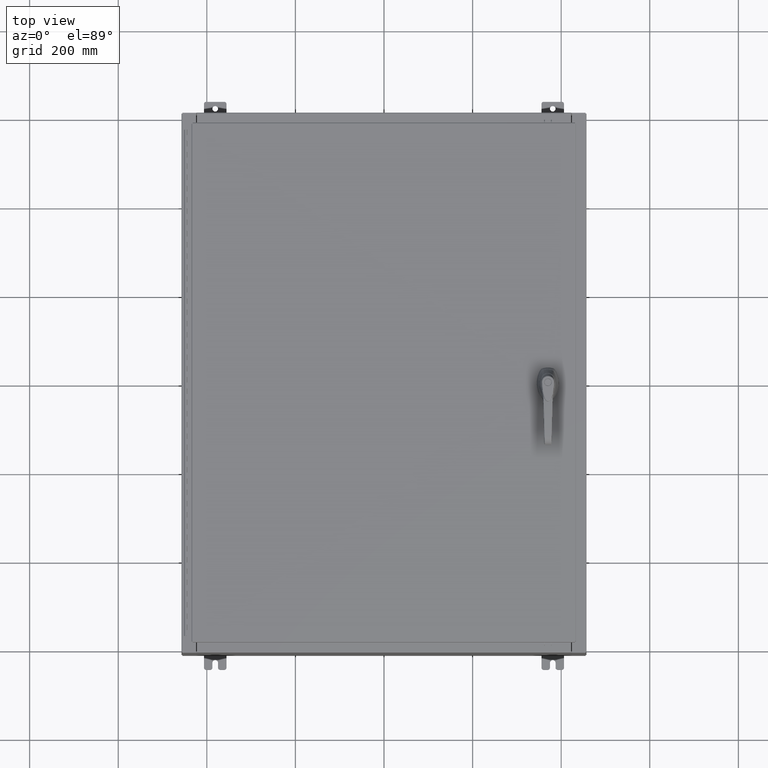
[diagram: clean part render]
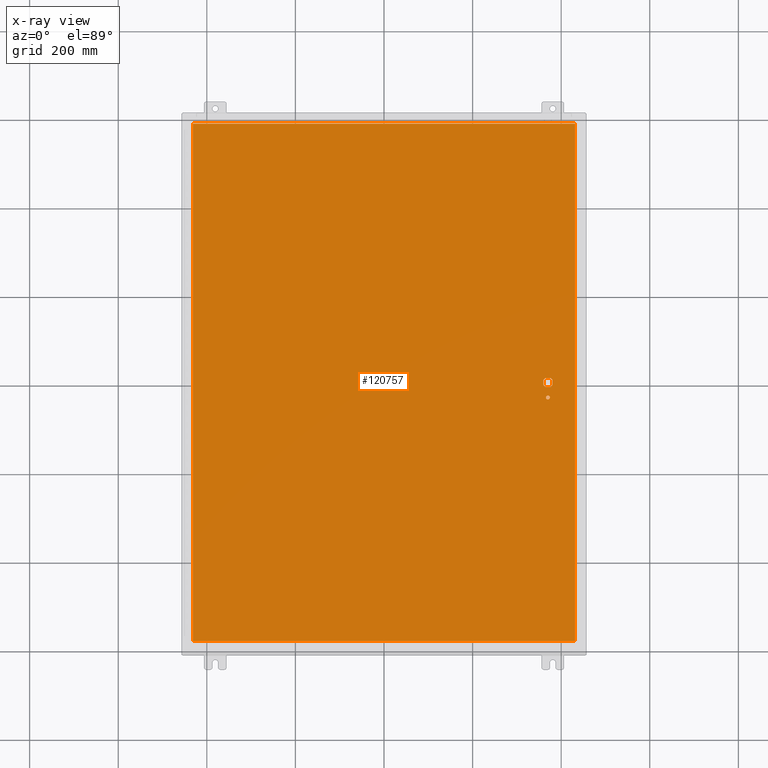
[diagram: x-ray — body ghosted, one internal face saturated and labeled with its STEP entity id]
A machine part, top view, then the same camera in x-ray: the body is ghosted and one INTERNAL B-rep face — a face not visible from any outside direction — is saturated and labeled: STEP entity #120757.
In plain terms, the highlighted planar face has unit normal (0, 0, -1).
Its self-contained STEP definition (entity closure, byte-faithful):
#180 = CARTESIAN_POINT ( 'NONE',  ( 0.0000000000000000000, 0.4029999999999252000, -0.07470000000000003000 ) ) ;
#238 = LINE ( 'NONE', #48779, #51246 ) ;
#257 = ORIENTED_EDGE ( 'NONE', *, *, #104133, .T. ) ;
#1577 = EDGE_LOOP ( 'NONE', ( #41284, #82655, #29346, #57979 ) ) ;
#3065 = CIRCLE ( 'NONE', #15625, 0.1715000000000011500 ) ;
#3250 = DIRECTION ( 'NONE',  ( 1.000000000000000000, 0.0000000000000000000, 0.0000000000000000000 ) ) ;
#4106 = VECTOR ( 'NONE', #3250, 39.37007874015748100 ) ;
#4361 = CARTESIAN_POINT ( 'NONE',  ( 14.57799999999999900, 0.0000000000000000000, -0.07470000000000003000 ) ) ;
#4659 = FACE_BOUND ( 'NONE', #85458, .T. ) ;
#6355 = CARTESIAN_POINT ( 'NONE',  ( 14.37777262924369000, 0.4029999999999252000, -0.07470000000000003000 ) ) ;
#6816 = CIRCLE ( 'NONE', #51948, 0.4499999999999168000 ) ;
#9841 = VERTEX_POINT ( 'NONE', #83686 ) ;
#9985 = DIRECTION ( 'NONE',  ( -0.0000000000000000000, -0.0000000000000000000, 1.000000000000000000 ) ) ;
#11381 = EDGE_CURVE ( 'NONE', #12407, #66307, #118340, .T. ) ;
#11672 = CARTESIAN_POINT ( 'NONE',  ( 14.37777262924369000, -0.4029999999999250300, -0.07470000000000003000 ) ) ;
#12407 = VERTEX_POINT ( 'NONE', #50989 ) ;
#12900 = VECTOR ( 'NONE', #102773, 39.37007874015748100 ) ;
#13223 = PLANE ( 'NONE',  #14266 ) ;
#14266 = AXIS2_PLACEMENT_3D ( 'NONE', #33812, #115453, #105565 ) ;
#14453 = CIRCLE ( 'NONE', #85550, 0.4499999999999168000 ) ;
#14620 = DIRECTION ( 'NONE',  ( -1.000000000000000000, -5.329070518200740300E-015, 0.0000000000000000000 ) ) ;
#15625 = AXIS2_PLACEMENT_3D ( 'NONE', #78451, #17038, #88760 ) ;
#16736 = DIRECTION ( 'NONE',  ( -0.0000000000000000000, -0.0000000000000000000, 1.000000000000000000 ) ) ;
#17038 = DIRECTION ( 'NONE',  ( -0.0000000000000000000, -0.0000000000000000000, 1.000000000000000000 ) ) ;
#17932 = CARTESIAN_POINT ( 'NONE',  ( 14.98099999999992700, 8.175868191945441800E-014, -0.07470000000000003000 ) ) ;
#18308 = DIRECTION ( 'NONE',  ( -1.000000000000000000, -0.0000000000000000000, -0.0000000000000000000 ) ) ;
#18831 = VERTEX_POINT ( 'NONE', #88375 ) ;
#19325 = ORIENTED_EDGE ( 'NONE', *, *, #41904, .T. ) ;
#19527 = CARTESIAN_POINT ( 'NONE',  ( -16.99029999999999800, -23.00630000000000300, -0.07469999999999804600 ) ) ;
#23417 = EDGE_CURVE ( 'NONE', #117730, #48780, #14453, .T. ) ;
#23684 = AXIS2_PLACEMENT_3D ( 'NONE', #61227, #132974, #71547 ) ;
#24177 = EDGE_CURVE ( 'NONE', #9841, #115886, #48050, .T. ) ;
#25014 = AXIS2_PLACEMENT_3D ( 'NONE', #4361, #76051, #14620 ) ;
#25109 = VERTEX_POINT ( 'NONE', #27841 ) ;
#25562 = DIRECTION ( 'NONE',  ( 0.0000000000000000000, -1.000000000000000000, 0.0000000000000000000 ) ) ;
#26939 = LINE ( 'NONE', #17932, #54177 ) ;
#27393 = EDGE_CURVE ( 'NONE', #25109, #18831, #79816, .T. ) ;
#27841 = CARTESIAN_POINT ( 'NONE',  ( -16.99029999999999800, -23.00630000000000000, -0.07470000000000000300 ) ) ;
#28153 = CARTESIAN_POINT ( 'NONE',  ( 14.77822737075630900, -0.4029999999999252000, -0.07470000000000003000 ) ) ;
#28748 = CIRCLE ( 'NONE', #23684, 0.4499999999999168000 ) ;
#29346 = ORIENTED_EDGE ( 'NONE', *, *, #130093, .F. ) ;
#29680 = CARTESIAN_POINT ( 'NONE',  ( 14.74950000000000100, -1.338000000000000100, -0.07470000000000003000 ) ) ;
#31316 = CARTESIAN_POINT ( 'NONE',  ( 14.57799999999999900, 0.0000000000000000000, -0.07470000000000003000 ) ) ;
#31853 = FACE_OUTER_BOUND ( 'NONE', #1577, .T. ) ;
#33463 = EDGE_CURVE ( 'NONE', #76808, #108185, #28748, .T. ) ;
#33812 = CARTESIAN_POINT ( 'NONE',  ( 0.0000000000000000000, 0.0000000000000000000, -0.07470000000000000300 ) ) ;
#35294 = ORIENTED_EDGE ( 'NONE', *, *, #52898, .T. ) ;
#41284 = ORIENTED_EDGE ( 'NONE', *, *, #57826, .F. ) ;
#41442 = LINE ( 'NONE', #79987, #123285 ) ;
#41662 = DIRECTION ( 'NONE',  ( -1.000000000000000000, -1.776356839400246700E-015, 0.0000000000000000000 ) ) ;
#41904 = EDGE_CURVE ( 'NONE', #108681, #96558, #120658, .T. ) ;
#48050 = LINE ( 'NONE', #69406, #129850 ) ;
#48779 = CARTESIAN_POINT ( 'NONE',  ( 14.17500000000007400, 0.0000000000000000000, -0.07470000000000003000 ) ) ;
#48780 = VERTEX_POINT ( 'NONE', #52349 ) ;
#49550 = ORIENTED_EDGE ( 'NONE', *, *, #86676, .T. ) ;
#50148 = EDGE_CURVE ( 'NONE', #117730, #56189, #26939, .T. ) ;
#50989 = CARTESIAN_POINT ( 'NONE',  ( 14.40649999999999800, -1.338000000000000100, -0.07470000000000003000 ) ) ;
#51246 = VECTOR ( 'NONE', #99858, 39.37007874015748100 ) ;
#51948 = AXIS2_PLACEMENT_3D ( 'NONE', #31316, #103080, #41662 ) ;
#52349 = CARTESIAN_POINT ( 'NONE',  ( 14.77822737075630900, 0.4029999999999250300, -0.07470000000000003000 ) ) ;
#52898 = EDGE_CURVE ( 'NONE', #108185, #57176, #85848, .T. ) ;
#54177 = VECTOR ( 'NONE', #120153, 39.37007874015748100 ) ;
#55689 = EDGE_LOOP ( 'NONE', ( #78360, #105682, #98658, #49550, #19325, #73285, #96555, #35294 ) ) ;
#56189 = VERTEX_POINT ( 'NONE', #62507 ) ;
#57148 = CARTESIAN_POINT ( 'NONE',  ( 14.98099999999992700, 0.2002273707563075900, -0.07470000000000003000 ) ) ;
#57176 = VERTEX_POINT ( 'NONE', #28153 ) ;
#57826 = EDGE_CURVE ( 'NONE', #18831, #9841, #41442, .T. ) ;
#57979 = ORIENTED_EDGE ( 'NONE', *, *, #24177, .F. ) ;
#59063 = AXIS2_PLACEMENT_3D ( 'NONE', #78153, #16736, #88451 ) ;
#61227 = CARTESIAN_POINT ( 'NONE',  ( 14.57799999999999900, 0.0000000000000000000, -0.07470000000000003000 ) ) ;
#62507 = CARTESIAN_POINT ( 'NONE',  ( 14.98099999999992700, -0.2002273707563067300, -0.07470000000000003000 ) ) ;
#66218 = CARTESIAN_POINT ( 'NONE',  ( 14.17500000000007400, 0.2002273707563075900, -0.07470000000000003000 ) ) ;
#66307 = VERTEX_POINT ( 'NONE', #29680 ) ;
#69406 = CARTESIAN_POINT ( 'NONE',  ( 16.99029999999999800, 23.00630000000001000, -0.07469999999999804600 ) ) ;
#70668 = DIRECTION ( 'NONE',  ( 1.000000000000000000, -0.0000000000000000000, -0.0000000000000000000 ) ) ;
#71379 = CARTESIAN_POINT ( 'NONE',  ( 14.57799999999999900, 0.0000000000000000000, -0.07470000000000003000 ) ) ;
#71547 = DIRECTION ( 'NONE',  ( -1.000000000000000000, -1.776356839400246700E-015, 0.0000000000000000000 ) ) ;
#73285 = ORIENTED_EDGE ( 'NONE', *, *, #103368, .T. ) ;
#74910 = VECTOR ( 'NONE', #25562, 39.37007874015748100 ) ;
#76051 = DIRECTION ( 'NONE',  ( -0.0000000000000000000, -0.0000000000000000000, 1.000000000000000000 ) ) ;
#76808 = VERTEX_POINT ( 'NONE', #125179 ) ;
#78153 = CARTESIAN_POINT ( 'NONE',  ( 14.57799999999999900, -1.338000000000000100, -0.07470000000000003000 ) ) ;
#78360 = ORIENTED_EDGE ( 'NONE', *, *, #94296, .T. ) ;
#78451 = CARTESIAN_POINT ( 'NONE',  ( 14.57799999999999900, -1.338000000000000100, -0.07470000000000003000 ) ) ;
#78486 = ORIENTED_EDGE ( 'NONE', *, *, #11381, .T. ) ;
#79816 = LINE ( 'NONE', #19527, #103899 ) ;
#79987 = CARTESIAN_POINT ( 'NONE',  ( 16.99029999999999800, -23.00630000000000300, -0.07470000000000019700 ) ) ;
#81685 = DIRECTION ( 'NONE',  ( -1.000000000000000000, -5.329070518200740300E-015, 0.0000000000000000000 ) ) ;
#82655 = ORIENTED_EDGE ( 'NONE', *, *, #27393, .F. ) ;
#83686 = CARTESIAN_POINT ( 'NONE',  ( 16.99029999999999800, 23.00630000000000300, -0.07470000000000000300 ) ) ;
#85458 = EDGE_LOOP ( 'NONE', ( #257, #78486 ) ) ;
#85550 = AXIS2_PLACEMENT_3D ( 'NONE', #71379, #9985, #81685 ) ;
#85848 = LINE ( 'NONE', #115734, #4106 ) ;
#86381 = CARTESIAN_POINT ( 'NONE',  ( -16.99029999999999400, 23.00630000000000300, -0.07470000000000000300 ) ) ;
#86676 = EDGE_CURVE ( 'NONE', #48780, #108681, #121998, .T. ) ;
#88375 = CARTESIAN_POINT ( 'NONE',  ( 16.99029999999999800, -23.00630000000000000, -0.07470000000000000300 ) ) ;
#88451 = DIRECTION ( 'NONE',  ( -1.000000000000000000, 0.0000000000000000000, 0.0000000000000000000 ) ) ;
#88760 = DIRECTION ( 'NONE',  ( -1.000000000000000000, 0.0000000000000000000, 0.0000000000000000000 ) ) ;
#94296 = EDGE_CURVE ( 'NONE', #57176, #56189, #6816, .T. ) ;
#96555 = ORIENTED_EDGE ( 'NONE', *, *, #33463, .T. ) ;
#96558 = VERTEX_POINT ( 'NONE', #66218 ) ;
#97256 = CARTESIAN_POINT ( 'NONE',  ( -16.99029999999999400, 23.00630000000001000, -0.07470000000000129300 ) ) ;
#98658 = ORIENTED_EDGE ( 'NONE', *, *, #23417, .T. ) ;
#99858 = DIRECTION ( 'NONE',  ( 0.0000000000000000000, -1.000000000000000000, 0.0000000000000000000 ) ) ;
#102181 = LINE ( 'NONE', #97256, #74910 ) ;
#102773 = DIRECTION ( 'NONE',  ( -1.000000000000000000, 0.0000000000000000000, 0.0000000000000000000 ) ) ;
#103080 = DIRECTION ( 'NONE',  ( -0.0000000000000000000, -0.0000000000000000000, 1.000000000000000000 ) ) ;
#103368 = EDGE_CURVE ( 'NONE', #96558, #76808, #238, .T. ) ;
#103899 = VECTOR ( 'NONE', #70668, 39.37007874015748100 ) ;
#104133 = EDGE_CURVE ( 'NONE', #66307, #12407, #3065, .T. ) ;
#105565 = DIRECTION ( 'NONE',  ( -1.000000000000000000, 0.0000000000000000000, -0.0000000000000000000 ) ) ;
#105682 = ORIENTED_EDGE ( 'NONE', *, *, #50148, .F. ) ;
#108185 = VERTEX_POINT ( 'NONE', #11672 ) ;
#108681 = VERTEX_POINT ( 'NONE', #6355 ) ;
#110959 = DIRECTION ( 'NONE',  ( 0.0000000000000000000, 1.000000000000000000, 0.0000000000000000000 ) ) ;
#113714 = FACE_BOUND ( 'NONE', #55689, .T. ) ;
#115453 = DIRECTION ( 'NONE',  ( 0.0000000000000000000, 0.0000000000000000000, -1.000000000000000000 ) ) ;
#115734 = CARTESIAN_POINT ( 'NONE',  ( 0.0000000000000000000, -0.4029999999999252000, -0.07470000000000003000 ) ) ;
#115886 = VERTEX_POINT ( 'NONE', #86381 ) ;
#117730 = VERTEX_POINT ( 'NONE', #57148 ) ;
#118340 = CIRCLE ( 'NONE', #59063, 0.1715000000000011500 ) ;
#120153 = DIRECTION ( 'NONE',  ( 5.457491617345625800E-015, -1.000000000000000000, 0.0000000000000000000 ) ) ;
#120658 = CIRCLE ( 'NONE', #25014, 0.4499999999999168000 ) ;
#120757 = ADVANCED_FACE ( 'NONE', ( #4659, #31853, #113714 ), #13223, .T. ) ;
#121998 = LINE ( 'NONE', #180, #12900 ) ;
#123285 = VECTOR ( 'NONE', #110959, 39.37007874015748100 ) ;
#125179 = CARTESIAN_POINT ( 'NONE',  ( 14.17500000000007400, -0.2002273707563079800, -0.07470000000000003000 ) ) ;
#129850 = VECTOR ( 'NONE', #18308, 39.37007874015748100 ) ;
#130093 = EDGE_CURVE ( 'NONE', #115886, #25109, #102181, .T. ) ;
#132974 = DIRECTION ( 'NONE',  ( -0.0000000000000000000, -0.0000000000000000000, 1.000000000000000000 ) ) ;